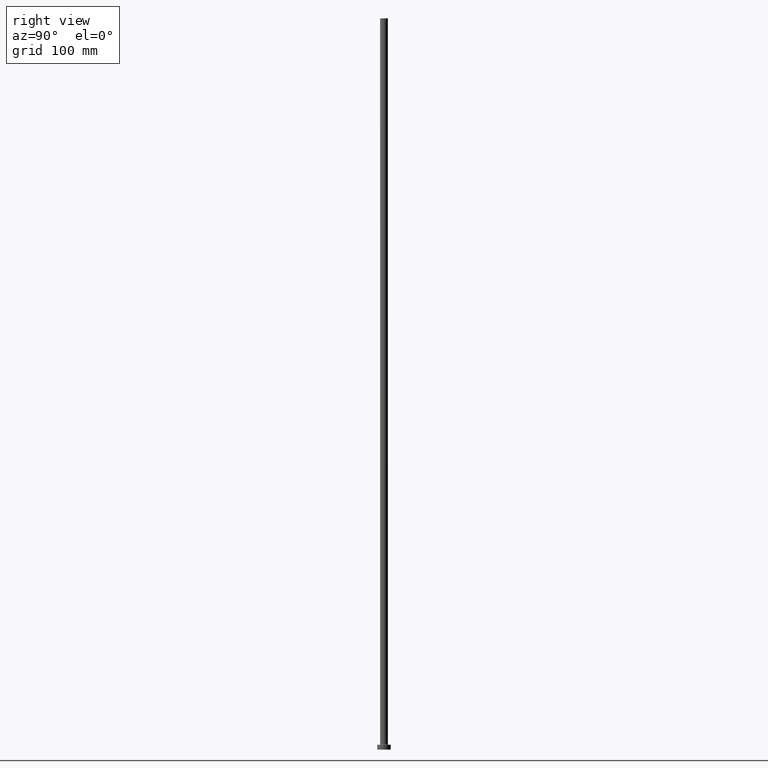
[diagram: clean part render]
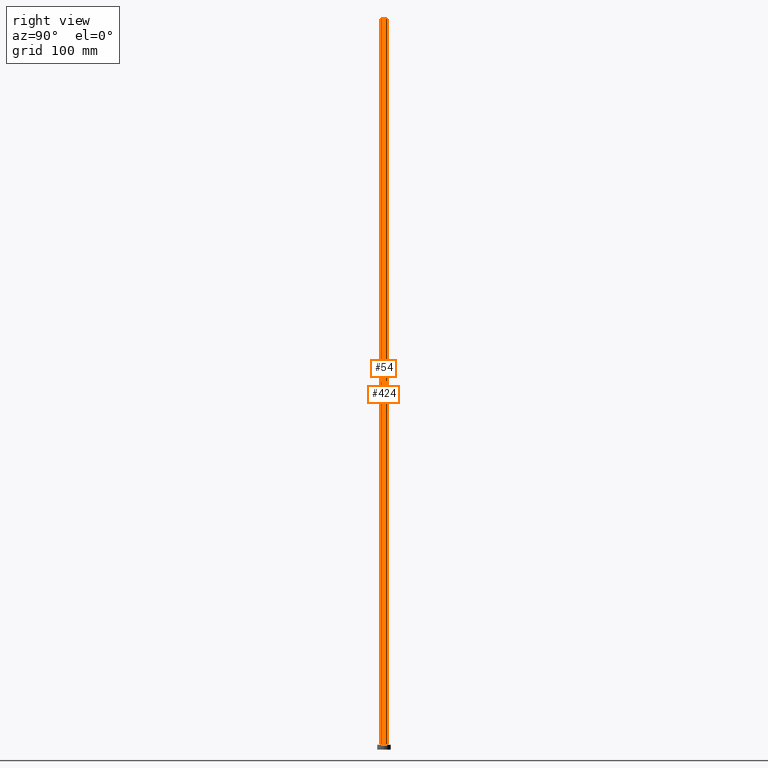
[diagram: same view with one multi-face feature highlighted, each face labeled with its STEP entity id]
A machine part, right view. The highlighted faces form ONE feature: a constant-radius fillet chain: 2 tangent blend faces with common blend radius 4 mm. The faces share edges in the B-rep.
Their STEP definitions:
[1] entity #54 (Cylinder):
#1 = CARTESIAN_POINT ( 'NONE',  ( -4.000000000000000000, 0.000000000000000000, 750.0000000000000000 ) ) ;
#6 = VERTEX_POINT ( 'NONE', #357 ) ;
#34 = EDGE_CURVE ( 'NONE', #345, #197, #182, .T. ) ;
#36 = VERTEX_POINT ( 'NONE', #178 ) ;
#42 = CIRCLE ( 'NONE', #313, 4.000000000000000000 ) ;
#54 = ADVANCED_FACE ( 'NONE', ( #400 ), #268, .T. ) ;
#72 = VECTOR ( 'NONE', #450, 1000.000000000000000 ) ;
#89 = CARTESIAN_POINT ( 'NONE',  ( 0.000000000000000000, 0.000000000000000000, 750.0000000000000000 ) ) ;
#91 = CARTESIAN_POINT ( 'NONE',  ( 0.000000000000000000, 0.000000000000000000, 5.499999999999949374 ) ) ;
#98 = EDGE_CURVE ( 'NONE', #197, #6, #347, .T. ) ;
#116 = CARTESIAN_POINT ( 'NONE',  ( -4.000000000000000000, 0.000000000000000000, 750.0000000000000000 ) ) ;
#133 = VECTOR ( 'NONE', #139, 1000.000000000000000 ) ;
#138 = ORIENTED_EDGE ( 'NONE', *, *, #395, .F. ) ;
#139 = DIRECTION ( 'NONE',  ( -0.000000000000000000, -0.000000000000000000, -1.000000000000000000 ) ) ;
#159 = DIRECTION ( 'NONE',  ( 1.000000000000000000, 0.000000000000000000, 0.000000000000000000 ) ) ;
#178 = CARTESIAN_POINT ( 'NONE',  ( 4.000000000000000000, 4.898587196589412829E-16, 750.0000000000000000 ) ) ;
#182 = LINE ( 'NONE', #1, #133 ) ;
#191 = DIRECTION ( 'NONE',  ( 1.000000000000000000, 0.000000000000000000, 0.000000000000000000 ) ) ;
#196 = DIRECTION ( 'NONE',  ( -1.000000000000000000, 0.000000000000000000, 0.000000000000000000 ) ) ;
#197 = VERTEX_POINT ( 'NONE', #355 ) ;
#198 = DIRECTION ( 'NONE',  ( 0.000000000000000000, 0.000000000000000000, 1.000000000000000000 ) ) ;
#234 = CARTESIAN_POINT ( 'NONE',  ( 0.000000000000000000, 0.000000000000000000, 750.0000000000000000 ) ) ;
#249 = ORIENTED_EDGE ( 'NONE', *, *, #323, .F. ) ;
#266 = AXIS2_PLACEMENT_3D ( 'NONE', #91, #334, #191 ) ;
#268 = CYLINDRICAL_SURFACE ( 'NONE', #417, 4.000000000000000000 ) ;
#313 = AXIS2_PLACEMENT_3D ( 'NONE', #89, #198, #159 ) ;
#320 = EDGE_LOOP ( 'NONE', ( #138, #249, #453, #335 ) ) ;
#323 = EDGE_CURVE ( 'NONE', #345, #36, #42, .T. ) ;
#334 = DIRECTION ( 'NONE',  ( 0.000000000000000000, 0.000000000000000000, 1.000000000000000000 ) ) ;
#335 = ORIENTED_EDGE ( 'NONE', *, *, #98, .T. ) ;
#343 = LINE ( 'NONE', #376, #72 ) ;
#345 = VERTEX_POINT ( 'NONE', #116 ) ;
#347 = CIRCLE ( 'NONE', #266, 4.000000000000000000 ) ;
#355 = CARTESIAN_POINT ( 'NONE',  ( -4.000000000000000000, 0.000000000000000000, 5.499999999999949374 ) ) ;
#357 = CARTESIAN_POINT ( 'NONE',  ( 4.000000000000000000, 4.898587196589412829E-16, 5.499999999999949374 ) ) ;
#374 = DIRECTION ( 'NONE',  ( -0.000000000000000000, -0.000000000000000000, -1.000000000000000000 ) ) ;
#376 = CARTESIAN_POINT ( 'NONE',  ( 4.000000000000000000, 4.898587196589412829E-16, 750.0000000000000000 ) ) ;
#395 = EDGE_CURVE ( 'NONE', #36, #6, #343, .T. ) ;
#400 = FACE_OUTER_BOUND ( 'NONE', #320, .T. ) ;
#417 = AXIS2_PLACEMENT_3D ( 'NONE', #234, #374, #196 ) ;
#450 = DIRECTION ( 'NONE',  ( -0.000000000000000000, -0.000000000000000000, -1.000000000000000000 ) ) ;
#453 = ORIENTED_EDGE ( 'NONE', *, *, #34, .T. ) ;
[2] entity #424 (Cylinder):
#1 = CARTESIAN_POINT ( 'NONE',  ( -4.000000000000000000, 0.000000000000000000, 750.0000000000000000 ) ) ;
#5 = CARTESIAN_POINT ( 'NONE',  ( 0.000000000000000000, 0.000000000000000000, 750.0000000000000000 ) ) ;
#6 = VERTEX_POINT ( 'NONE', #357 ) ;
#34 = EDGE_CURVE ( 'NONE', #345, #197, #182, .T. ) ;
#36 = VERTEX_POINT ( 'NONE', #178 ) ;
#72 = VECTOR ( 'NONE', #450, 1000.000000000000000 ) ;
#78 = AXIS2_PLACEMENT_3D ( 'NONE', #286, #431, #319 ) ;
#116 = CARTESIAN_POINT ( 'NONE',  ( -4.000000000000000000, 0.000000000000000000, 750.0000000000000000 ) ) ;
#133 = VECTOR ( 'NONE', #139, 1000.000000000000000 ) ;
#139 = DIRECTION ( 'NONE',  ( -0.000000000000000000, -0.000000000000000000, -1.000000000000000000 ) ) ;
#143 = DIRECTION ( 'NONE',  ( 0.000000000000000000, 0.000000000000000000, 1.000000000000000000 ) ) ;
#164 = CYLINDRICAL_SURFACE ( 'NONE', #288, 4.000000000000000000 ) ;
#172 = DIRECTION ( 'NONE',  ( -1.000000000000000000, 0.000000000000000000, 0.000000000000000000 ) ) ;
#178 = CARTESIAN_POINT ( 'NONE',  ( 4.000000000000000000, 4.898587196589412829E-16, 750.0000000000000000 ) ) ;
#182 = LINE ( 'NONE', #1, #133 ) ;
#197 = VERTEX_POINT ( 'NONE', #355 ) ;
#247 = FACE_OUTER_BOUND ( 'NONE', #285, .T. ) ;
#248 = ORIENTED_EDGE ( 'NONE', *, *, #254, .T. ) ;
#251 = EDGE_CURVE ( 'NONE', #36, #345, #283, .T. ) ;
#254 = EDGE_CURVE ( 'NONE', #6, #197, #379, .T. ) ;
#283 = CIRCLE ( 'NONE', #287, 4.000000000000000000 ) ;
#285 = EDGE_LOOP ( 'NONE', ( #354, #410, #248, #460 ) ) ;
#286 = CARTESIAN_POINT ( 'NONE',  ( 0.000000000000000000, 0.000000000000000000, 5.499999999999949374 ) ) ;
#287 = AXIS2_PLACEMENT_3D ( 'NONE', #5, #143, #386 ) ;
#288 = AXIS2_PLACEMENT_3D ( 'NONE', #303, #348, #172 ) ;
#303 = CARTESIAN_POINT ( 'NONE',  ( 0.000000000000000000, 0.000000000000000000, 750.0000000000000000 ) ) ;
#319 = DIRECTION ( 'NONE',  ( 1.000000000000000000, 0.000000000000000000, 0.000000000000000000 ) ) ;
#343 = LINE ( 'NONE', #376, #72 ) ;
#345 = VERTEX_POINT ( 'NONE', #116 ) ;
#348 = DIRECTION ( 'NONE',  ( -0.000000000000000000, -0.000000000000000000, -1.000000000000000000 ) ) ;
#354 = ORIENTED_EDGE ( 'NONE', *, *, #251, .F. ) ;
#355 = CARTESIAN_POINT ( 'NONE',  ( -4.000000000000000000, 0.000000000000000000, 5.499999999999949374 ) ) ;
#357 = CARTESIAN_POINT ( 'NONE',  ( 4.000000000000000000, 4.898587196589412829E-16, 5.499999999999949374 ) ) ;
#376 = CARTESIAN_POINT ( 'NONE',  ( 4.000000000000000000, 4.898587196589412829E-16, 750.0000000000000000 ) ) ;
#379 = CIRCLE ( 'NONE', #78, 4.000000000000000000 ) ;
#386 = DIRECTION ( 'NONE',  ( 1.000000000000000000, 0.000000000000000000, 0.000000000000000000 ) ) ;
#395 = EDGE_CURVE ( 'NONE', #36, #6, #343, .T. ) ;
#410 = ORIENTED_EDGE ( 'NONE', *, *, #395, .T. ) ;
#424 = ADVANCED_FACE ( 'NONE', ( #247 ), #164, .T. ) ;
#431 = DIRECTION ( 'NONE',  ( 0.000000000000000000, 0.000000000000000000, 1.000000000000000000 ) ) ;
#450 = DIRECTION ( 'NONE',  ( -0.000000000000000000, -0.000000000000000000, -1.000000000000000000 ) ) ;
#460 = ORIENTED_EDGE ( 'NONE', *, *, #34, .F. ) ;